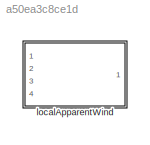
MODEL slx_a50ea3c8ce1d
KIND library
CONFIG AbsTol = auto
CONFIG EnableMultiTasking = off
CONFIG FixedStep = auto
CONFIG MaxStep = auto
CONFIG MinStep = auto
CONFIG RelTol = 1e-3
CONFIG SampleTimeConstraint = Unconstrained
CONFIG Solver = VariableStepAuto
CONFIG SolverName = VariableStepAuto
CONFIG StartTime = 0.0
CONFIG StopTime = 10.0
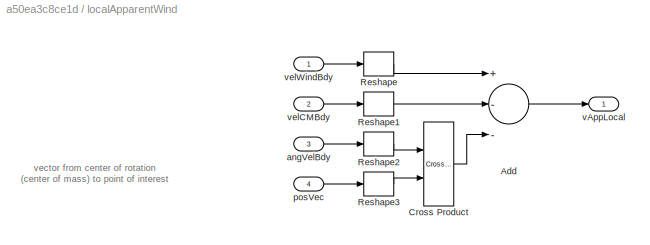
BLOCK [SubSystem] localApparentWind
  Ports = [4, 1]
  RequestExecContextInheritance = off
BLOCK [Sum] localApparentWind/Add
  InputSameDT = off
  Inputs = +--
  OutDataTypeStr = Inherit: Inherit via internal rule
  Ports = [3, 1]
  SaturateOnIntegerOverflow = off
BLOCK [Reference] localApparentWind/Cross Product  REF=vrlib/Utilities/Cross Product
  Ports = [2, 1]
  SourceBlock = vrlib/Utilities/Cross Product
  SourceProductBaseCode = VR
  SourceProductName = Simulink 3D Animation
  SourceType = Cross Product
BLOCK [Reshape] localApparentWind/Reshape
  OutputDimensionality = Column vector (2-D)
  Ports = [1, 1]
BLOCK [Reshape] localApparentWind/Reshape1
  OutputDimensionality = Column vector (2-D)
  Ports = [1, 1]
BLOCK [Reshape] localApparentWind/Reshape2
  OutputDimensionality = Column vector (2-D)
  Ports = [1, 1]
BLOCK [Reshape] localApparentWind/Reshape3
  OutputDimensionality = Column vector (2-D)
  Ports = [1, 1]
BLOCK [Inport] localApparentWind/angVelBdy
  IconDisplay = Port number
  Port = 3
BLOCK [Inport] localApparentWind/posVec
  IconDisplay = Port number
  Port = 4
BLOCK [Outport] localApparentWind/vAppLocal
  IconDisplay = Port number
BLOCK [Inport] localApparentWind/velCMBdy
  IconDisplay = Port number
  Port = 2
BLOCK [Inport] localApparentWind/velWindBdy
  IconDisplay = Port number
ANNOTATION localApparentWind: vector from center of rotation (center of mass) to point of interest
LINE localApparentWind/Add:1 -> localApparentWind/vAppLocal:1
LINE localApparentWind/Cross Product:1 -> localApparentWind/Add:3
LINE localApparentWind/Reshape1:1 -> localApparentWind/Add:2
LINE localApparentWind/Reshape2:1 -> localApparentWind/Cross Product:1
LINE localApparentWind/Reshape3:1 -> localApparentWind/Cross Product:2
LINE localApparentWind/Reshape:1 -> localApparentWind/Add:1
LINE localApparentWind/angVelBdy:1 -> localApparentWind/Reshape2:1
LINE localApparentWind/posVec:1 -> localApparentWind/Reshape3:1
LINE localApparentWind/velCMBdy:1 -> localApparentWind/Reshape1:1
LINE localApparentWind/velWindBdy:1 -> localApparentWind/Reshape:1
